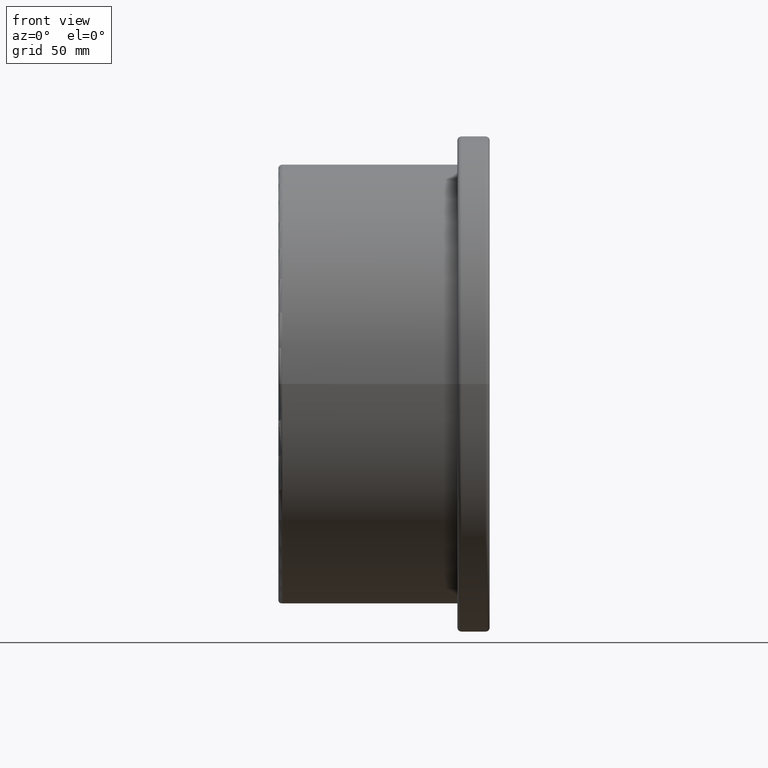
[diagram: clean part render]
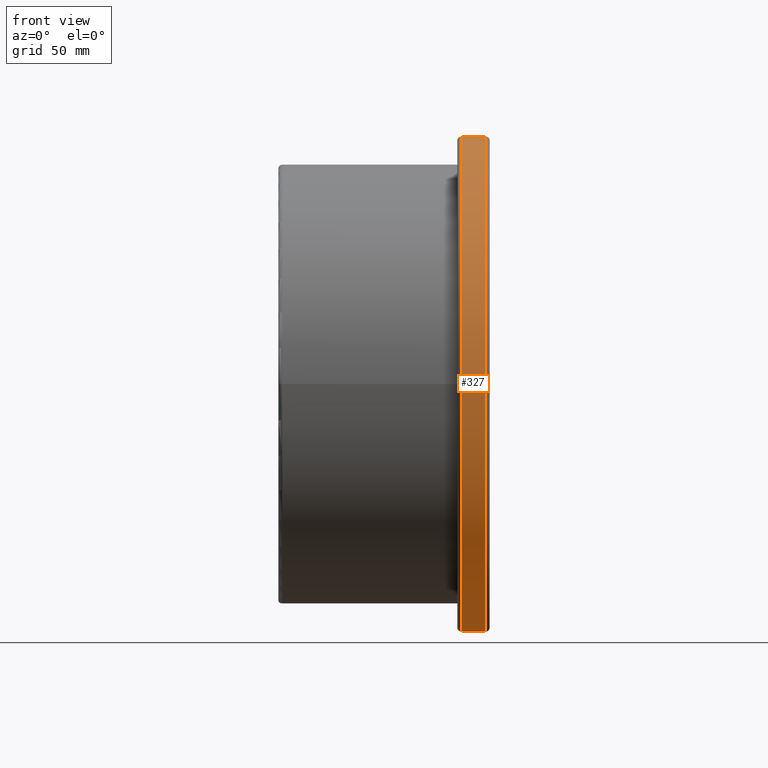
[diagram: same view with one face highlighted and labeled with its STEP entity id]
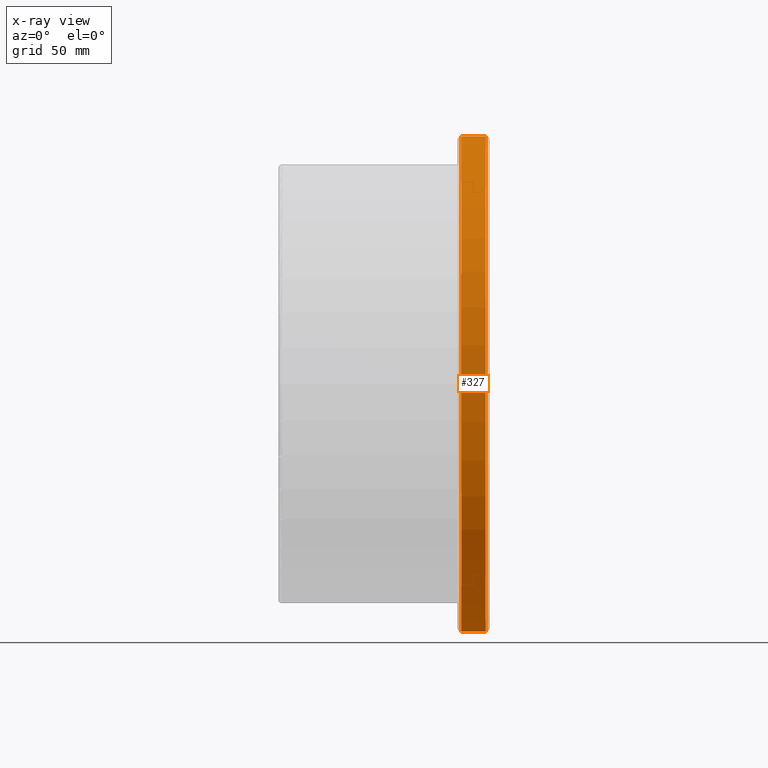
[diagram: x-ray of the same camera — body ghosted, the highlighted face saturated]
A machine part, front view. The second image highlights one B-rep face of the part: STEP entity #327.
The next image is the same camera in x-ray: the body ghosted, the highlighted face saturated — about 0% of this face is hidden behind the body in this view.
In plain terms, the highlighted cylindrical surface (bore or boss wall) has radius 153.5 mm, axis along (-1, 0, 0).
Its self-contained STEP definition (entity closure, byte-faithful):
#22=CYLINDRICAL_SURFACE('',#371,153.5);
#60=FACE_BOUND('',#134,.T.);
#88=FACE_OUTER_BOUND('',#133,.T.);
#133=EDGE_LOOP('',(#283));
#134=EDGE_LOOP('',(#284));
#163=CIRCLE('',#370,153.5);
#164=CIRCLE('',#372,153.5);
#191=VERTEX_POINT('',#2683);
#192=VERTEX_POINT('',#2686);
#224=EDGE_CURVE('',#191,#191,#163,.T.);
#225=EDGE_CURVE('',#192,#192,#164,.T.);
#283=ORIENTED_EDGE('',*,*,#225,.F.);
#284=ORIENTED_EDGE('',*,*,#224,.F.);
#327=ADVANCED_FACE('',(#88,#60),#22,.T.);
#370=AXIS2_PLACEMENT_3D('',#2684,#453,#454);
#371=AXIS2_PLACEMENT_3D('',#2685,#455,#456);
#372=AXIS2_PLACEMENT_3D('',#2687,#457,#458);
#453=DIRECTION('center_axis',(1.,0.,0.));
#454=DIRECTION('ref_axis',(0.,1.,6.12323399573677E-17));
#455=DIRECTION('center_axis',(-1.,0.,0.));
#456=DIRECTION('ref_axis',(0.,-1.,0.));
#457=DIRECTION('center_axis',(-1.,0.,0.));
#458=DIRECTION('ref_axis',(0.,1.,6.12323399573677E-17));
#2683=CARTESIAN_POINT('',(128.5,-153.5,-2.81974925503678E-14));
#2684=CARTESIAN_POINT('Origin',(128.5,0.,0.));
#2685=CARTESIAN_POINT('Origin',(121.,0.,0.));
#2686=CARTESIAN_POINT('',(113.5,-153.5,9.39916418345594E-15));
#2687=CARTESIAN_POINT('Origin',(113.5,0.,0.));